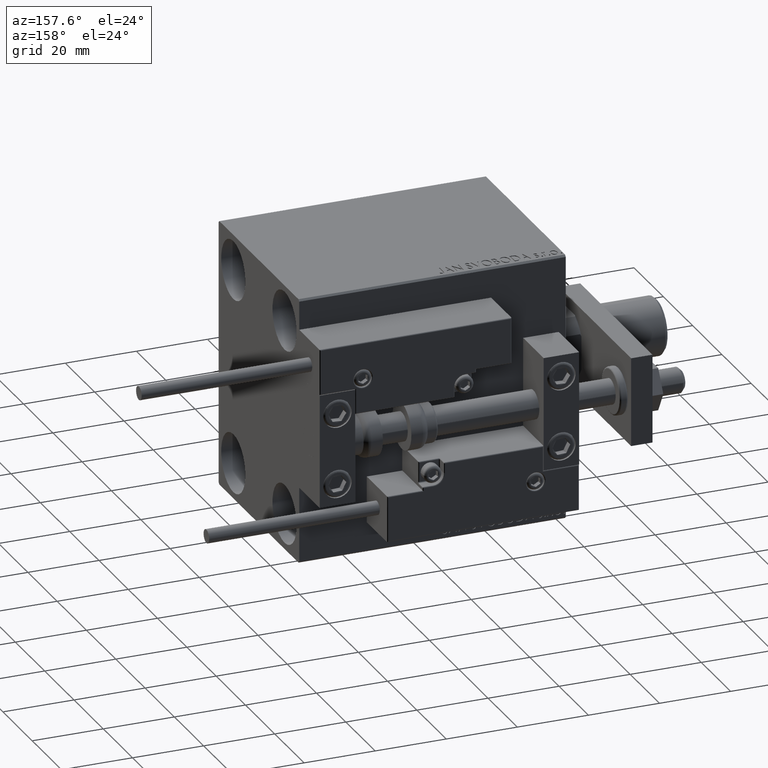
[diagram: clean part render]
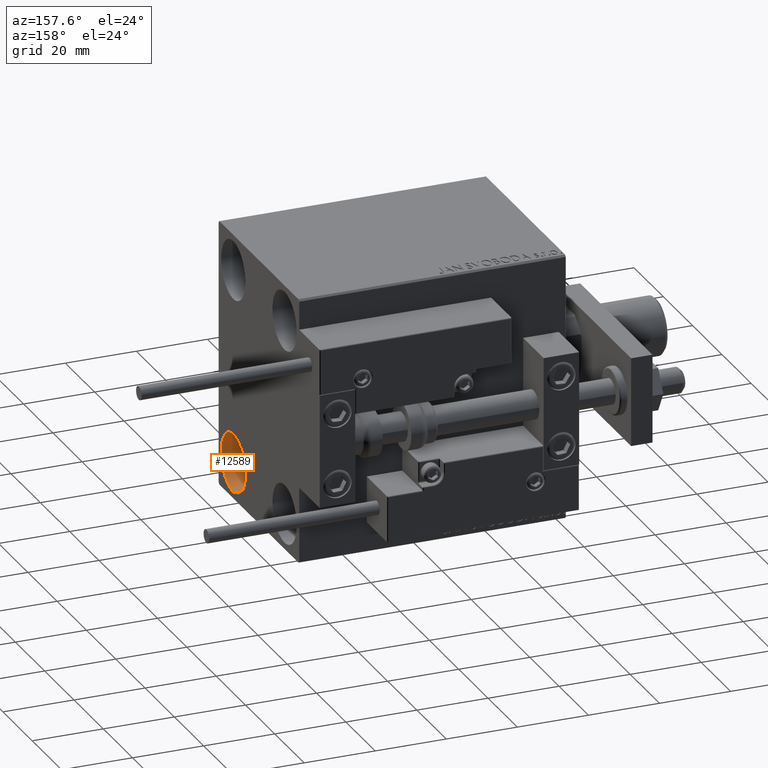
[diagram: same view with one face highlighted and labeled with its STEP entity id]
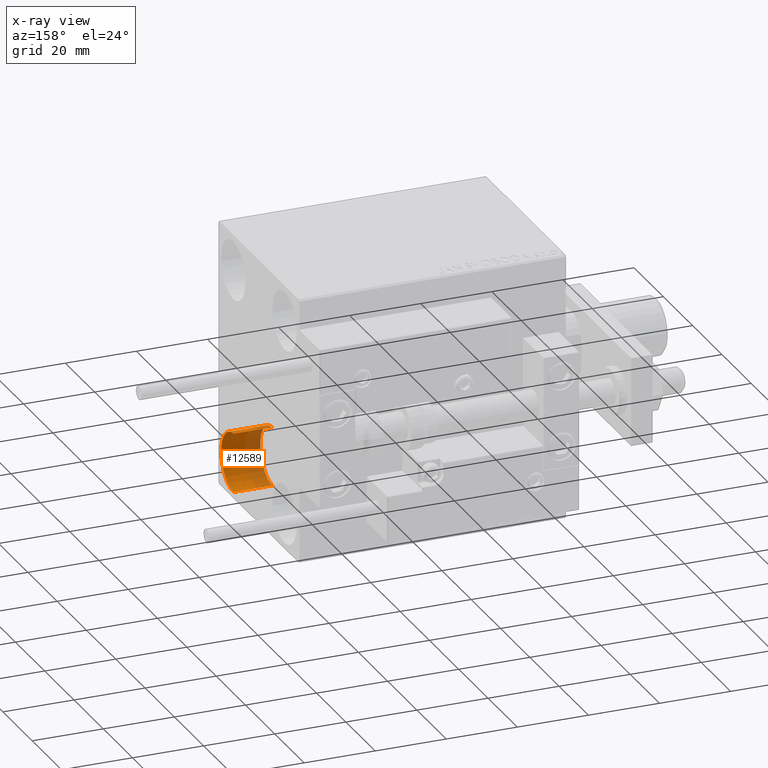
[diagram: x-ray of the same camera — body ghosted, the highlighted face saturated]
A machine part, auxiliary view. The second image highlights one B-rep face of the part: STEP entity #12589.
The next image is the same camera in x-ray: the body ghosted, the highlighted face saturated — about 39% of this face is hidden behind the body in this view.
In plain terms, the highlighted cylindrical surface (edge-blend (fillet) strip) has radius 8.25 mm, axis along (1, 0, 0).
Its self-contained STEP definition (entity closure, byte-faithful):
#1026 = CARTESIAN_POINT ( 'NONE',  ( 64.00000000000000000, -17.50000000000000355, -19.25000000000000355 ) ) ;
#1376 = VERTEX_POINT ( 'NONE', #37766 ) ;
#2128 = VECTOR ( 'NONE', #25251, 1000.000000000000000 ) ;
#3146 = ORIENTED_EDGE ( 'NONE', *, *, #25974, .T. ) ;
#5067 = CARTESIAN_POINT ( 'NONE',  ( 75.00000000000000000, -17.50000000000000355, -35.75000000000000711 ) ) ;
#6244 = VERTEX_POINT ( 'NONE', #1026 ) ;
#6775 = AXIS2_PLACEMENT_3D ( 'NONE', #15540, #12453, #32221 ) ;
#7079 = AXIS2_PLACEMENT_3D ( 'NONE', #31574, #34651, #23090 ) ;
#7583 = CYLINDRICAL_SURFACE ( 'NONE', #6775, 8.250000000000000000 ) ;
#12453 = DIRECTION ( 'NONE',  ( 1.000000000000000000, -0.000000000000000000, -0.000000000000000000 ) ) ;
#12589 = ADVANCED_FACE ( 'NONE', ( #42745 ), #7583, .F. ) ;
#14814 = LINE ( 'NONE', #30457, #2128 ) ;
#15451 = ORIENTED_EDGE ( 'NONE', *, *, #46077, .T. ) ;
#15540 = CARTESIAN_POINT ( 'NONE',  ( 64.00000000000000000, -17.50000000000000355, -27.50000000000000355 ) ) ;
#19347 = VERTEX_POINT ( 'NONE', #5067 ) ;
#19872 = CARTESIAN_POINT ( 'NONE',  ( 64.00000000000000000, -17.50000000000000355, -35.75000000000000711 ) ) ;
#21392 = EDGE_LOOP ( 'NONE', ( #15451, #3146, #34465, #48413 ) ) ;
#23090 = DIRECTION ( 'NONE',  ( 0.000000000000000000, 0.000000000000000000, 1.000000000000000000 ) ) ;
#25251 = DIRECTION ( 'NONE',  ( 1.000000000000000000, -0.000000000000000000, -0.000000000000000000 ) ) ;
#25974 = EDGE_CURVE ( 'NONE', #6244, #36014, #14814, .T. ) ;
#30434 = EDGE_CURVE ( 'NONE', #1376, #19347, #47592, .T. ) ;
#30457 = CARTESIAN_POINT ( 'NONE',  ( 64.00000000000000000, -17.50000000000000355, -19.25000000000000355 ) ) ;
#31574 = CARTESIAN_POINT ( 'NONE',  ( 75.00000000000000000, -17.50000000000000355, -27.50000000000000355 ) ) ;
#32221 = DIRECTION ( 'NONE',  ( 0.000000000000000000, 0.000000000000000000, -1.000000000000000000 ) ) ;
#32483 = CIRCLE ( 'NONE', #7079, 8.250000000000000000 ) ;
#34291 = VECTOR ( 'NONE', #43504, 1000.000000000000000 ) ;
#34465 = ORIENTED_EDGE ( 'NONE', *, *, #48864, .F. ) ;
#34651 = DIRECTION ( 'NONE',  ( -1.000000000000000000, -0.000000000000000000, -0.000000000000000000 ) ) ;
#36014 = VERTEX_POINT ( 'NONE', #39460 ) ;
#37766 = CARTESIAN_POINT ( 'NONE',  ( 64.00000000000000000, -17.50000000000000355, -35.75000000000000711 ) ) ;
#38163 = AXIS2_PLACEMENT_3D ( 'NONE', #43188, #38828, #47540 ) ;
#38828 = DIRECTION ( 'NONE',  ( -1.000000000000000000, -0.000000000000000000, -0.000000000000000000 ) ) ;
#38970 = CIRCLE ( 'NONE', #38163, 8.250000000000000000 ) ;
#39460 = CARTESIAN_POINT ( 'NONE',  ( 75.00000000000000000, -17.50000000000000355, -19.25000000000000355 ) ) ;
#42745 = FACE_OUTER_BOUND ( 'NONE', #21392, .T. ) ;
#43188 = CARTESIAN_POINT ( 'NONE',  ( 64.00000000000000000, -17.50000000000000355, -27.50000000000000355 ) ) ;
#43504 = DIRECTION ( 'NONE',  ( 1.000000000000000000, -0.000000000000000000, -0.000000000000000000 ) ) ;
#46077 = EDGE_CURVE ( 'NONE', #1376, #6244, #38970, .T. ) ;
#47540 = DIRECTION ( 'NONE',  ( 0.000000000000000000, 0.000000000000000000, 1.000000000000000000 ) ) ;
#47592 = LINE ( 'NONE', #19872, #34291 ) ;
#48413 = ORIENTED_EDGE ( 'NONE', *, *, #30434, .F. ) ;
#48864 = EDGE_CURVE ( 'NONE', #19347, #36014, #32483, .T. ) ;